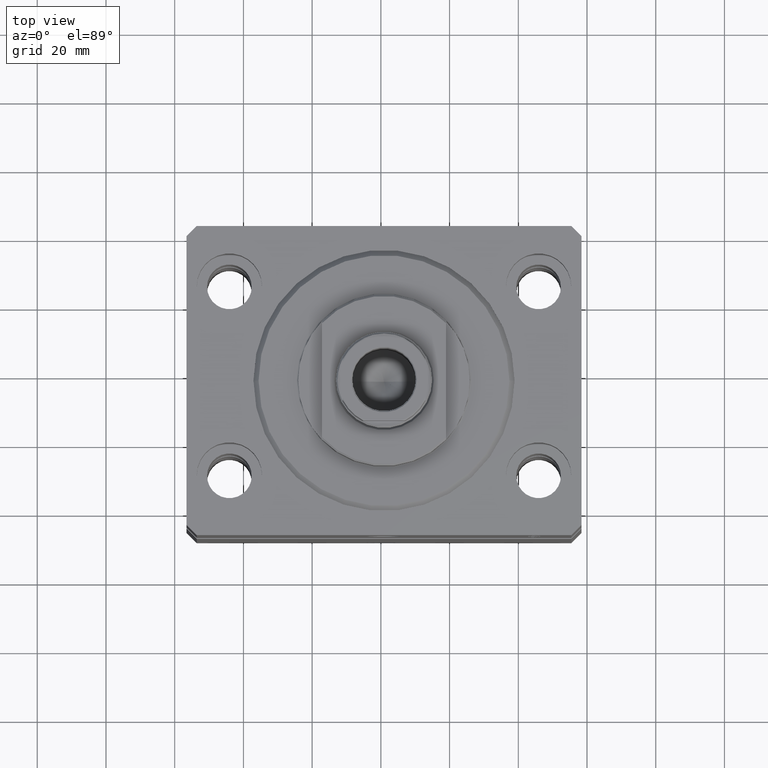
[diagram: clean part render]
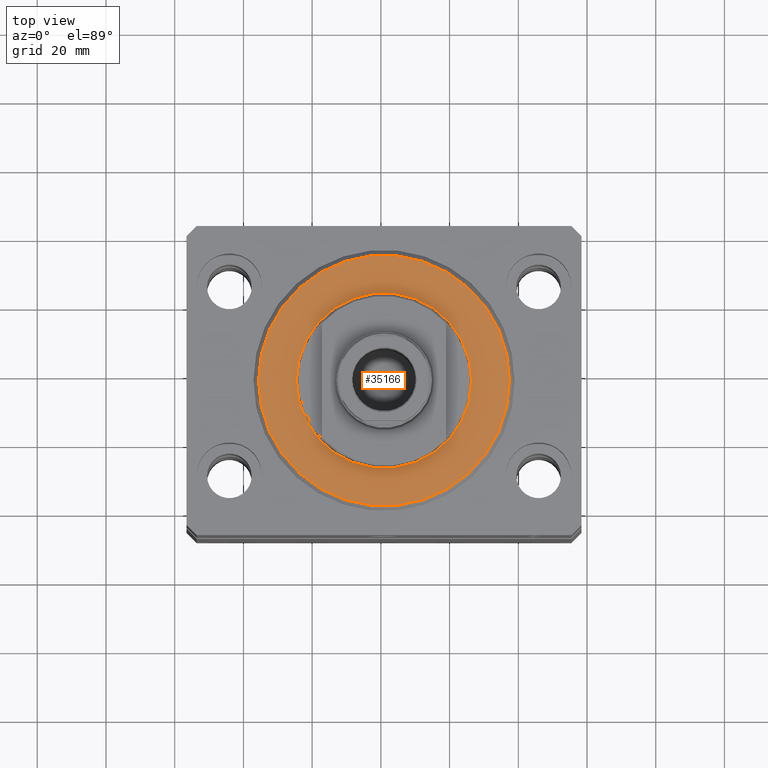
[diagram: same view with one face highlighted and labeled with its STEP entity id]
A machine part, top view. The second image highlights one B-rep face of the part: STEP entity #35166.
In plain terms, the highlighted planar face has unit normal (0, 0, -1).
Its self-contained STEP definition (entity closure, byte-faithful):
#934 = PLANE ( 'NONE',  #30704 ) ;
#3781 = ORIENTED_EDGE ( 'NONE', *, *, #8125, .T. ) ;
#4634 = FACE_OUTER_BOUND ( 'NONE', #42802, .T. ) ;
#4790 = CIRCLE ( 'NONE', #12176, 25.50000000000000355 ) ;
#4827 = VERTEX_POINT ( 'NONE', #9814 ) ;
#8125 = EDGE_CURVE ( 'NONE', #32659, #30844, #29823, .T. ) ;
#9814 = CARTESIAN_POINT ( 'NONE',  ( -36.50000000000000000, 4.561809326823889791E-15, 0.000000000000000000 ) ) ;
#10364 = DIRECTION ( 'NONE',  ( 0.000000000000000000, 0.000000000000000000, 1.000000000000000000 ) ) ;
#11751 = DIRECTION ( 'NONE',  ( 0.000000000000000000, 0.000000000000000000, 1.000000000000000000 ) ) ;
#12005 = AXIS2_PLACEMENT_3D ( 'NONE', #19436, #11751, #19206 ) ;
#12176 = AXIS2_PLACEMENT_3D ( 'NONE', #37997, #10364, #45193 ) ;
#14863 = FACE_BOUND ( 'NONE', #19392, .T. ) ;
#16839 = EDGE_CURVE ( 'NONE', #41330, #4827, #25620, .T. ) ;
#17201 = CARTESIAN_POINT ( 'NONE',  ( -25.50000000000000355, 3.122849337825751011E-15, 2.168404344971008868E-16 ) ) ;
#18809 = CARTESIAN_POINT ( 'NONE',  ( 0.000000000000000000, 0.000000000000000000, 0.000000000000000000 ) ) ;
#19206 = DIRECTION ( 'NONE',  ( 1.000000000000000000, 0.000000000000000000, 0.000000000000000000 ) ) ;
#19392 = EDGE_LOOP ( 'NONE', ( #26300, #3781 ) ) ;
#19436 = CARTESIAN_POINT ( 'NONE',  ( 0.000000000000000000, 0.000000000000000000, 0.000000000000000000 ) ) ;
#20971 = CARTESIAN_POINT ( 'NONE',  ( 36.50000000000000000, 0.000000000000000000, 0.000000000000000000 ) ) ;
#24179 = CARTESIAN_POINT ( 'NONE',  ( 0.000000000000000000, 0.000000000000000000, 0.000000000000000000 ) ) ;
#24874 = DIRECTION ( 'NONE',  ( 1.000000000000000000, 0.000000000000000000, -0.000000000000000000 ) ) ;
#25620 = CIRCLE ( 'NONE', #31551, 36.50000000000000000 ) ;
#26300 = ORIENTED_EDGE ( 'NONE', *, *, #34748, .T. ) ;
#26976 = ORIENTED_EDGE ( 'NONE', *, *, #16839, .T. ) ;
#27656 = DIRECTION ( 'NONE',  ( -0.000000000000000000, -0.000000000000000000, -1.000000000000000000 ) ) ;
#28100 = DIRECTION ( 'NONE',  ( -0.000000000000000000, -0.000000000000000000, -1.000000000000000000 ) ) ;
#29823 = CIRCLE ( 'NONE', #12005, 25.50000000000000355 ) ;
#30704 = AXIS2_PLACEMENT_3D ( 'NONE', #18809, #42502, #24874 ) ;
#30844 = VERTEX_POINT ( 'NONE', #40658 ) ;
#31342 = DIRECTION ( 'NONE',  ( 1.000000000000000000, 0.000000000000000000, 0.000000000000000000 ) ) ;
#31551 = AXIS2_PLACEMENT_3D ( 'NONE', #45494, #28100, #31342 ) ;
#31835 = DIRECTION ( 'NONE',  ( 1.000000000000000000, 0.000000000000000000, 0.000000000000000000 ) ) ;
#32570 = ORIENTED_EDGE ( 'NONE', *, *, #33370, .T. ) ;
#32659 = VERTEX_POINT ( 'NONE', #17201 ) ;
#33370 = EDGE_CURVE ( 'NONE', #4827, #41330, #36619, .T. ) ;
#34748 = EDGE_CURVE ( 'NONE', #30844, #32659, #4790, .T. ) ;
#35166 = ADVANCED_FACE ( 'NONE', ( #14863, #4634 ), #934, .F. ) ;
#36619 = CIRCLE ( 'NONE', #37379, 36.50000000000000000 ) ;
#37379 = AXIS2_PLACEMENT_3D ( 'NONE', #24179, #27656, #31835 ) ;
#37997 = CARTESIAN_POINT ( 'NONE',  ( 0.000000000000000000, 0.000000000000000000, 0.000000000000000000 ) ) ;
#40658 = CARTESIAN_POINT ( 'NONE',  ( 25.50000000000000355, 0.000000000000000000, 2.168404344971008868E-16 ) ) ;
#41330 = VERTEX_POINT ( 'NONE', #20971 ) ;
#42502 = DIRECTION ( 'NONE',  ( 0.000000000000000000, 0.000000000000000000, 1.000000000000000000 ) ) ;
#42802 = EDGE_LOOP ( 'NONE', ( #26976, #32570 ) ) ;
#45193 = DIRECTION ( 'NONE',  ( 1.000000000000000000, 0.000000000000000000, 0.000000000000000000 ) ) ;
#45494 = CARTESIAN_POINT ( 'NONE',  ( 0.000000000000000000, 0.000000000000000000, 0.000000000000000000 ) ) ;